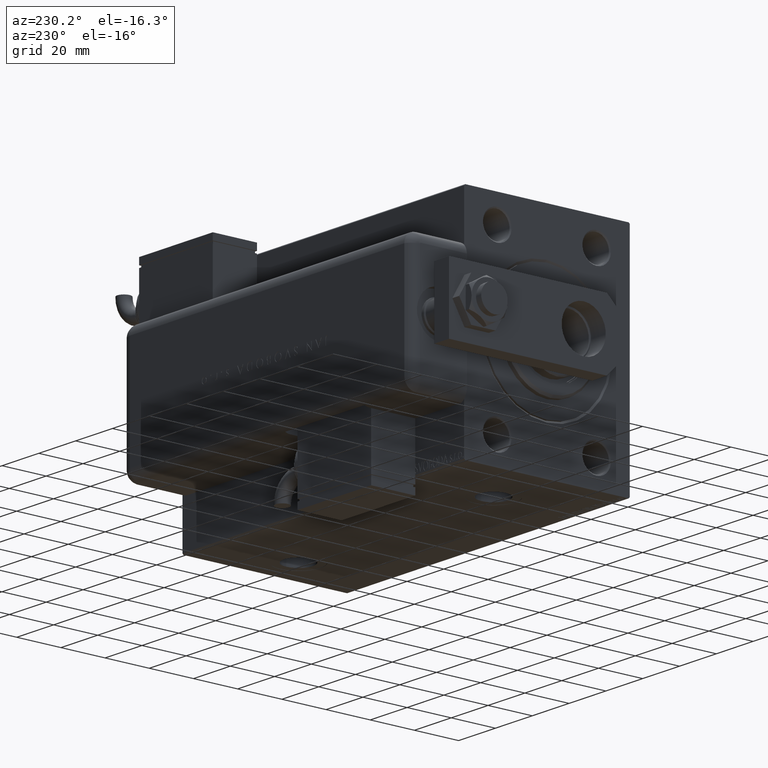
[diagram: clean part render]
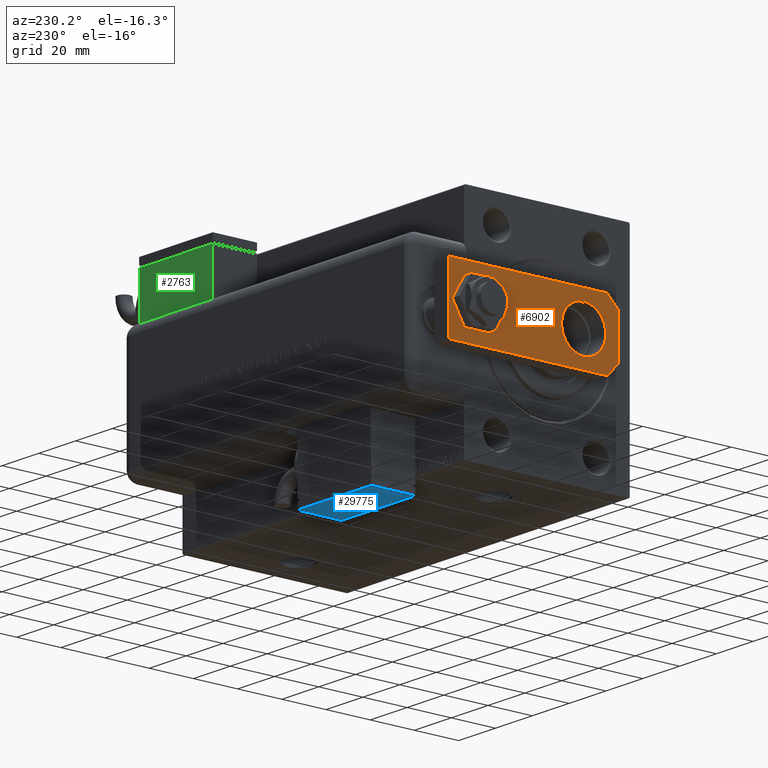
[diagram: same view with three faces highlighted in distinct colors, each labeled with its STEP entity id]
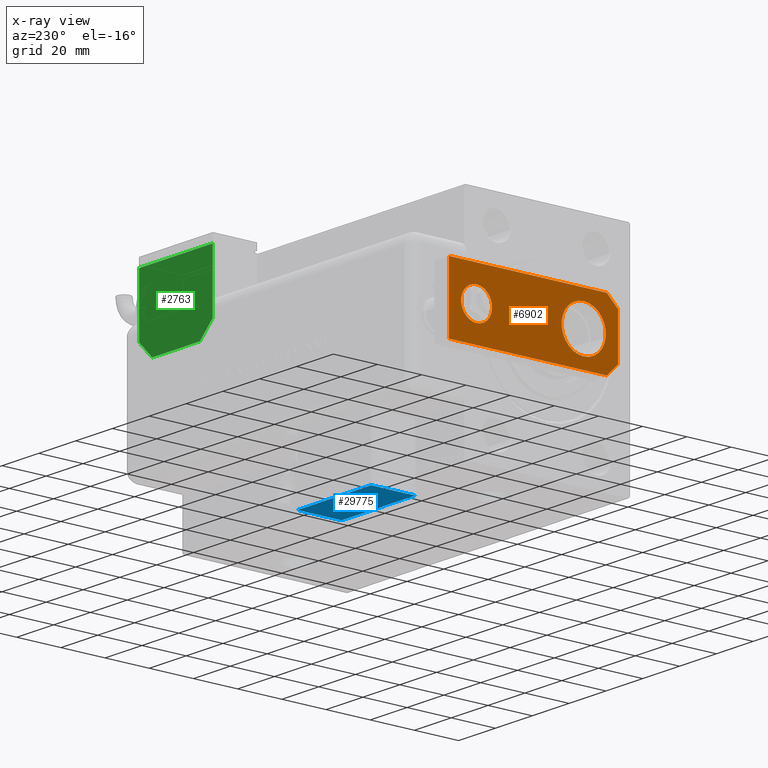
[diagram: x-ray of the same camera — body ghosted, the three highlighted faces saturated]
A machine part, auxiliary view with three faces highlighted in distinct colors.
The next image is the same camera in x-ray (body ghosted, the three faces saturated) — at least one of them is partly hidden behind the body in this view.
Their STEP definitions:

[orange] entity #6902 — the highlighted planar face has unit normal (1, -0, -0).
#388 = CARTESIAN_POINT ( 'NONE',  ( 0.000000000000000000, 15.50000000000000000, 0.000000000000000000 ) ) ;
#1644 = CIRCLE ( 'NONE', #24012, 7.000000000000000000 ) ;
#1754 = VERTEX_POINT ( 'NONE', #54611 ) ;
#2066 = VERTEX_POINT ( 'NONE', #56074 ) ;
#2070 = DIRECTION ( 'NONE',  ( 1.000000000000000000, 0.000000000000000000, 0.000000000000000000 ) ) ;
#3474 = VERTEX_POINT ( 'NONE', #49580 ) ;
#3833 = LINE ( 'NONE', #28200, #25932 ) ;
#3860 = EDGE_LOOP ( 'NONE', ( #14050, #24241 ) ) ;
#4025 = CARTESIAN_POINT ( 'NONE',  ( -10.00000000000001066, 9.629649721936179265E-32, 0.000000000000000000 ) ) ;
#4603 = ORIENTED_EDGE ( 'NONE', *, *, #45210, .F. ) ;
#6902 = ADVANCED_FACE ( 'NONE', ( #17613, #39894, #58439 ), #16726, .F. ) ;
#6972 = DIRECTION ( 'NONE',  ( -0.000000000000000000, 0.000000000000000000, 1.000000000000000000 ) ) ;
#7715 = VERTEX_POINT ( 'NONE', #12824 ) ;
#8246 = VERTEX_POINT ( 'NONE', #41926 ) ;
#8695 = ORIENTED_EDGE ( 'NONE', *, *, #52146, .T. ) ;
#10852 = LINE ( 'NONE', #29734, #31037 ) ;
#11364 = ORIENTED_EDGE ( 'NONE', *, *, #14969, .T. ) ;
#11531 = CARTESIAN_POINT ( 'NONE',  ( 1.963948872468190046E-17, 64.00000000000000000, 0.000000000000000000 ) ) ;
#12448 = DIRECTION ( 'NONE',  ( -1.000000000000000000, 0.000000000000000000, 0.000000000000000000 ) ) ;
#12824 = CARTESIAN_POINT ( 'NONE',  ( 15.00000000000000888, 5.000000000000004441, 0.000000000000000000 ) ) ;
#13129 = DIRECTION ( 'NONE',  ( -6.802837160693361638E-17, 1.000000000000000000, 0.000000000000000000 ) ) ;
#13245 = CARTESIAN_POINT ( 'NONE',  ( -7.000000000000000000, 64.00000000000000000, 0.000000000000000000 ) ) ;
#13835 = EDGE_CURVE ( 'NONE', #7715, #45419, #46014, .T. ) ;
#14050 = ORIENTED_EDGE ( 'NONE', *, *, #59160, .T. ) ;
#14969 = EDGE_CURVE ( 'NONE', #30846, #8246, #56612, .T. ) ;
#15003 = CARTESIAN_POINT ( 'NONE',  ( 0.000000000000000000, 15.50000000000000000, 0.000000000000000000 ) ) ;
#15489 = CARTESIAN_POINT ( 'NONE',  ( -10.00000000000001066, 9.629649721936179265E-32, 0.000000000000000000 ) ) ;
#15656 = CARTESIAN_POINT ( 'NONE',  ( 15.00000000000000355, 76.50000000000000000, 0.000000000000000000 ) ) ;
#16726 = PLANE ( 'NONE',  #49909 ) ;
#17018 = ORIENTED_EDGE ( 'NONE', *, *, #50840, .F. ) ;
#17613 = FACE_OUTER_BOUND ( 'NONE', #39286, .T. ) ;
#18133 = VERTEX_POINT ( 'NONE', #13245 ) ;
#18668 = EDGE_CURVE ( 'NONE', #2066, #3474, #31711, .T. ) ;
#19864 = DIRECTION ( 'NONE',  ( -1.360567432138672328E-16, -1.000000000000000000, 0.000000000000000000 ) ) ;
#20311 = DIRECTION ( 'NONE',  ( 1.000000000000000000, 0.000000000000000000, 0.000000000000000000 ) ) ;
#23158 = EDGE_LOOP ( 'NONE', ( #43411, #30728 ) ) ;
#24012 = AXIS2_PLACEMENT_3D ( 'NONE', #11531, #44418, #2070 ) ;
#24241 = ORIENTED_EDGE ( 'NONE', *, *, #18668, .T. ) ;
#25932 = VECTOR ( 'NONE', #46783, 1000.000000000000114 ) ;
#27712 = VECTOR ( 'NONE', #46575, 1000.000000000000114 ) ;
#27807 = VECTOR ( 'NONE', #13129, 1000.000000000000000 ) ;
#28200 = CARTESIAN_POINT ( 'NONE',  ( 15.00000000000000888, 5.000000000000004441, 0.000000000000000000 ) ) ;
#28399 = CARTESIAN_POINT ( 'NONE',  ( -14.99999999999999822, 76.50000000000000000, 0.000000000000000000 ) ) ;
#28721 = DIRECTION ( 'NONE',  ( 1.000000000000000000, 0.000000000000000000, 0.000000000000000000 ) ) ;
#29734 = CARTESIAN_POINT ( 'NONE',  ( -15.00000000000000888, 9.629649721936179265E-32, 0.000000000000000000 ) ) ;
#29963 = CARTESIAN_POINT ( 'NONE',  ( 1.963948872468190046E-17, 64.00000000000000000, 0.000000000000000000 ) ) ;
#30011 = EDGE_CURVE ( 'NONE', #46915, #8246, #38748, .T. ) ;
#30728 = ORIENTED_EDGE ( 'NONE', *, *, #45541, .T. ) ;
#30846 = VERTEX_POINT ( 'NONE', #4025 ) ;
#31037 = VECTOR ( 'NONE', #20311, 1000.000000000000000 ) ;
#31711 = CIRCLE ( 'NONE', #59917, 10.00000000000000711 ) ;
#32615 = CARTESIAN_POINT ( 'NONE',  ( 15.00000000000000888, 9.629649721936179265E-32, 0.000000000000000000 ) ) ;
#32995 = DIRECTION ( 'NONE',  ( 0.000000000000000000, 0.000000000000000000, 1.000000000000000000 ) ) ;
#33929 = DIRECTION ( 'NONE',  ( 1.000000000000000000, 0.000000000000000000, 0.000000000000000000 ) ) ;
#35294 = DIRECTION ( 'NONE',  ( 1.000000000000000000, 0.000000000000000000, 0.000000000000000000 ) ) ;
#35904 = AXIS2_PLACEMENT_3D ( 'NONE', #29963, #53419, #33929 ) ;
#35966 = CARTESIAN_POINT ( 'NONE',  ( 9.999999999999982236, 9.629649721936179265E-32, 0.000000000000000000 ) ) ;
#36175 = VERTEX_POINT ( 'NONE', #35966 ) ;
#36528 = ORIENTED_EDGE ( 'NONE', *, *, #13835, .F. ) ;
#38748 = LINE ( 'NONE', #28399, #42213 ) ;
#39286 = EDGE_LOOP ( 'NONE', ( #4603, #11364, #43476, #17018, #36528, #8695 ) ) ;
#39814 = AXIS2_PLACEMENT_3D ( 'NONE', #388, #32995, #28721 ) ;
#39894 = FACE_BOUND ( 'NONE', #23158, .T. ) ;
#41926 = CARTESIAN_POINT ( 'NONE',  ( -15.00000000000000888, 5.000000000000018652, 0.000000000000000000 ) ) ;
#42213 = VECTOR ( 'NONE', #19864, 1000.000000000000000 ) ;
#42730 = DIRECTION ( 'NONE',  ( 1.000000000000000000, 0.000000000000000000, 0.000000000000000000 ) ) ;
#43411 = ORIENTED_EDGE ( 'NONE', *, *, #54024, .T. ) ;
#43476 = ORIENTED_EDGE ( 'NONE', *, *, #30011, .F. ) ;
#44418 = DIRECTION ( 'NONE',  ( 0.000000000000000000, 0.000000000000000000, 1.000000000000000000 ) ) ;
#44641 = CIRCLE ( 'NONE', #35904, 7.000000000000000000 ) ;
#45210 = EDGE_CURVE ( 'NONE', #30846, #36175, #10852, .T. ) ;
#45419 = VERTEX_POINT ( 'NONE', #15656 ) ;
#45541 = EDGE_CURVE ( 'NONE', #1754, #18133, #44641, .T. ) ;
#46014 = LINE ( 'NONE', #32615, #27807 ) ;
#46575 = DIRECTION ( 'NONE',  ( -0.7071067811865460184, 0.7071067811865489050, -0.000000000000000000 ) ) ;
#46783 = DIRECTION ( 'NONE',  ( -0.7071067811865489050, -0.7071067811865460184, -0.000000000000000000 ) ) ;
#46915 = VERTEX_POINT ( 'NONE', #50758 ) ;
#48698 = CARTESIAN_POINT ( 'NONE',  ( 15.00000000000000355, 76.50000000000000000, 0.000000000000000000 ) ) ;
#49580 = CARTESIAN_POINT ( 'NONE',  ( -10.00000000000000711, 15.50000000000000000, 0.000000000000000000 ) ) ;
#49909 = AXIS2_PLACEMENT_3D ( 'NONE', #54771, #6972, #35294 ) ;
#50503 = VECTOR ( 'NONE', #12448, 1000.000000000000000 ) ;
#50758 = CARTESIAN_POINT ( 'NONE',  ( -14.99999999999999822, 76.50000000000000000, 0.000000000000000000 ) ) ;
#50840 = EDGE_CURVE ( 'NONE', #45419, #46915, #58726, .T. ) ;
#52146 = EDGE_CURVE ( 'NONE', #7715, #36175, #3833, .T. ) ;
#53419 = DIRECTION ( 'NONE',  ( 0.000000000000000000, 0.000000000000000000, 1.000000000000000000 ) ) ;
#54024 = EDGE_CURVE ( 'NONE', #18133, #1754, #1644, .T. ) ;
#54611 = CARTESIAN_POINT ( 'NONE',  ( 7.000000000000000000, 64.00000000000000000, 0.000000000000000000 ) ) ;
#54771 = CARTESIAN_POINT ( 'NONE',  ( 0.000000000000000000, 0.000000000000000000, 0.000000000000000000 ) ) ;
#56074 = CARTESIAN_POINT ( 'NONE',  ( 10.00000000000000711, 15.50000000000000178, 0.000000000000000000 ) ) ;
#56612 = LINE ( 'NONE', #15489, #27712 ) ;
#57025 = DIRECTION ( 'NONE',  ( 0.000000000000000000, 0.000000000000000000, 1.000000000000000000 ) ) ;
#57307 = CIRCLE ( 'NONE', #39814, 10.00000000000000711 ) ;
#58439 = FACE_BOUND ( 'NONE', #3860, .T. ) ;
#58726 = LINE ( 'NONE', #48698, #50503 ) ;
#59160 = EDGE_CURVE ( 'NONE', #3474, #2066, #57307, .T. ) ;
#59917 = AXIS2_PLACEMENT_3D ( 'NONE', #15003, #57025, #42730 ) ;

[blue] entity #29775 — the highlighted planar face has unit normal (0, 0, 1).
#644 = LINE ( 'NONE', #3478, #28346 ) ;
#922 = CARTESIAN_POINT ( 'NONE',  ( -19.99999999999994316, -17.49999999999996092, 10.00000000000000000 ) ) ;
#3478 = CARTESIAN_POINT ( 'NONE',  ( -19.99999999999994316, -17.49999999999996092, -9.999999999999998224 ) ) ;
#4324 = CARTESIAN_POINT ( 'NONE',  ( 0.000000000000000000, -17.49999999999996092, 0.000000000000000000 ) ) ;
#4489 = VECTOR ( 'NONE', #9771, 1000.000000000000000 ) ;
#5634 = VECTOR ( 'NONE', #56142, 1000.000000000000000 ) ;
#7889 = ORIENTED_EDGE ( 'NONE', *, *, #44261, .T. ) ;
#9771 = DIRECTION ( 'NONE',  ( -1.000000000000000000, -0.000000000000000000, -0.000000000000000000 ) ) ;
#10605 = CARTESIAN_POINT ( 'NONE',  ( -19.99999999999994316, -17.49999999999996092, -9.999999999999998224 ) ) ;
#13440 = EDGE_LOOP ( 'NONE', ( #40782, #27475, #7889, #35742 ) ) ;
#14940 = LINE ( 'NONE', #922, #4489 ) ;
#18223 = CARTESIAN_POINT ( 'NONE',  ( -19.99999999999994316, -17.49999999999996092, -9.999999999999998224 ) ) ;
#19397 = CARTESIAN_POINT ( 'NONE',  ( -19.99999999999994316, -17.49999999999996092, 10.00000000000000000 ) ) ;
#21782 = DIRECTION ( 'NONE',  ( 1.000000000000000000, 0.000000000000000000, 0.000000000000000000 ) ) ;
#23634 = EDGE_CURVE ( 'NONE', #58445, #59822, #644, .T. ) ;
#25827 = LINE ( 'NONE', #10605, #57240 ) ;
#27475 = ORIENTED_EDGE ( 'NONE', *, *, #38736, .T. ) ;
#28346 = VECTOR ( 'NONE', #21782, 1000.000000000000000 ) ;
#28423 = CARTESIAN_POINT ( 'NONE',  ( 20.00000000000005329, -17.49999999999996092, -9.999999999999998224 ) ) ;
#28723 = LINE ( 'NONE', #28423, #5634 ) ;
#29775 = ADVANCED_FACE ( 'NONE', ( #36632 ), #46066, .F. ) ;
#34337 = CARTESIAN_POINT ( 'NONE',  ( 20.00000000000005329, -17.49999999999996092, 10.00000000000000000 ) ) ;
#35742 = ORIENTED_EDGE ( 'NONE', *, *, #23634, .T. ) ;
#36632 = FACE_OUTER_BOUND ( 'NONE', #13440, .T. ) ;
#36934 = DIRECTION ( 'NONE',  ( 0.000000000000000000, -0.000000000000000000, 1.000000000000000000 ) ) ;
#38736 = EDGE_CURVE ( 'NONE', #58583, #40931, #14940, .T. ) ;
#40782 = ORIENTED_EDGE ( 'NONE', *, *, #43847, .T. ) ;
#40931 = VERTEX_POINT ( 'NONE', #19397 ) ;
#41250 = AXIS2_PLACEMENT_3D ( 'NONE', #4324, #60074, #36934 ) ;
#43847 = EDGE_CURVE ( 'NONE', #59822, #58583, #28723, .T. ) ;
#44261 = EDGE_CURVE ( 'NONE', #40931, #58445, #25827, .T. ) ;
#44403 = DIRECTION ( 'NONE',  ( -0.000000000000000000, -0.000000000000000000, -1.000000000000000000 ) ) ;
#46066 = PLANE ( 'NONE',  #41250 ) ;
#47984 = CARTESIAN_POINT ( 'NONE',  ( 20.00000000000005329, -17.49999999999996092, -9.999999999999998224 ) ) ;
#56142 = DIRECTION ( 'NONE',  ( 0.000000000000000000, 0.000000000000000000, 1.000000000000000000 ) ) ;
#57240 = VECTOR ( 'NONE', #44403, 1000.000000000000000 ) ;
#58445 = VERTEX_POINT ( 'NONE', #18223 ) ;
#58583 = VERTEX_POINT ( 'NONE', #34337 ) ;
#59822 = VERTEX_POINT ( 'NONE', #47984 ) ;
#60074 = DIRECTION ( 'NONE',  ( 0.000000000000000000, 1.000000000000000000, 0.000000000000000000 ) ) ;

[green] entity #2763 — the highlighted planar face has unit normal (-0, -1, 0).
#206 = EDGE_CURVE ( 'NONE', #48249, #47298, #42693, .T. ) ;
#1382 = LINE ( 'NONE', #23960, #21935 ) ;
#1887 = VERTEX_POINT ( 'NONE', #18960 ) ;
#2763 = ADVANCED_FACE ( 'NONE', ( #30836 ), #34202, .F. ) ;
#4141 = CARTESIAN_POINT ( 'NONE',  ( -19.99999999999994316, -13.49999999999996092, -10.00000000000000000 ) ) ;
#4445 = DIRECTION ( 'NONE',  ( 1.000000000000000000, 0.000000000000000000, 0.000000000000000000 ) ) ;
#5201 = ORIENTED_EDGE ( 'NONE', *, *, #43692, .F. ) ;
#8212 = VERTEX_POINT ( 'NONE', #34424 ) ;
#8925 = ORIENTED_EDGE ( 'NONE', *, *, #23302, .F. ) ;
#11058 = CARTESIAN_POINT ( 'NONE',  ( 0.000000000000000000, 0.000000000000000000, -10.00000000000000000 ) ) ;
#11309 = CARTESIAN_POINT ( 'NONE',  ( -12.99999999999994138, 20.50000000000009592, -10.00000000000000000 ) ) ;
#11715 = CARTESIAN_POINT ( 'NONE',  ( -19.99999999999994316, -13.49999999999996092, -10.00000000000000000 ) ) ;
#12331 = VECTOR ( 'NONE', #55995, 1000.000000000000000 ) ;
#13767 = VERTEX_POINT ( 'NONE', #53383 ) ;
#14158 = ORIENTED_EDGE ( 'NONE', *, *, #17071, .F. ) ;
#16662 = VECTOR ( 'NONE', #4445, 1000.000000000000000 ) ;
#16829 = DIRECTION ( 'NONE',  ( 0.000000000000000000, 0.000000000000000000, 1.000000000000000000 ) ) ;
#17071 = EDGE_CURVE ( 'NONE', #13767, #1887, #1382, .T. ) ;
#18960 = CARTESIAN_POINT ( 'NONE',  ( -19.99999999999993960, 2.569960705150834076E-15, -9.999999999999996447 ) ) ;
#19112 = CARTESIAN_POINT ( 'NONE',  ( 9.999999999999984013, 23.50000000000009592, -10.00000000000000000 ) ) ;
#21166 = DIRECTION ( 'NONE',  ( -1.284980352575421081E-16, -1.000000000000000000, -0.000000000000000000 ) ) ;
#21454 = VERTEX_POINT ( 'NONE', #44900 ) ;
#21935 = VECTOR ( 'NONE', #28217, 1000.000000000000000 ) ;
#22212 = LINE ( 'NONE', #27084, #12331 ) ;
#23302 = EDGE_CURVE ( 'NONE', #52071, #21454, #55328, .T. ) ;
#23960 = CARTESIAN_POINT ( 'NONE',  ( -19.99999999999994316, -13.49999999999996092, -10.00000000000000000 ) ) ;
#27084 = CARTESIAN_POINT ( 'NONE',  ( 20.00000000000005329, -13.49999999999996092, -10.00000000000000000 ) ) ;
#27454 = EDGE_CURVE ( 'NONE', #48249, #13767, #41489, .T. ) ;
#28217 = DIRECTION ( 'NONE',  ( -1.284980352575421081E-16, -1.000000000000000000, -0.000000000000000000 ) ) ;
#29635 = DIRECTION ( 'NONE',  ( 1.000000000000000000, 0.000000000000000000, -0.000000000000000000 ) ) ;
#30836 = FACE_OUTER_BOUND ( 'NONE', #41519, .T. ) ;
#31282 = CARTESIAN_POINT ( 'NONE',  ( -19.99999999999994316, -13.49999999999996092, -10.00000000000000000 ) ) ;
#34202 = PLANE ( 'NONE',  #59447 ) ;
#34424 = CARTESIAN_POINT ( 'NONE',  ( 20.00000000000005684, 13.50000000000003730, -10.00000000000000000 ) ) ;
#35775 = EDGE_CURVE ( 'NONE', #8212, #47298, #36771, .T. ) ;
#36580 = VECTOR ( 'NONE', #51402, 1000.000000000000114 ) ;
#36771 = LINE ( 'NONE', #19112, #36580 ) ;
#37474 = ORIENTED_EDGE ( 'NONE', *, *, #35775, .F. ) ;
#39391 = CARTESIAN_POINT ( 'NONE',  ( 12.99999999999999112, 20.50000000000009592, -10.00000000000000000 ) ) ;
#39949 = EDGE_CURVE ( 'NONE', #21454, #8212, #22212, .T. ) ;
#41489 = LINE ( 'NONE', #60049, #56726 ) ;
#41519 = EDGE_LOOP ( 'NONE', ( #56718, #51521, #37474, #59222, #8925, #5201, #14158 ) ) ;
#41794 = DIRECTION ( 'NONE',  ( 1.000000000000000000, 0.000000000000000000, 0.000000000000000000 ) ) ;
#42693 = LINE ( 'NONE', #47550, #55638 ) ;
#43692 = EDGE_CURVE ( 'NONE', #1887, #52071, #57706, .T. ) ;
#44900 = CARTESIAN_POINT ( 'NONE',  ( 20.00000000000005329, -13.49999999999996092, -10.00000000000000000 ) ) ;
#47298 = VERTEX_POINT ( 'NONE', #39391 ) ;
#47550 = CARTESIAN_POINT ( 'NONE',  ( 0.000000000000000000, 20.50000000000009592, -10.00000000000000000 ) ) ;
#48249 = VERTEX_POINT ( 'NONE', #11309 ) ;
#50328 = DIRECTION ( 'NONE',  ( -0.7071067811865356934, -0.7071067811865593411, -0.000000000000000000 ) ) ;
#51402 = DIRECTION ( 'NONE',  ( -0.7071067811865479058, 0.7071067811865470176, -0.000000000000000000 ) ) ;
#51521 = ORIENTED_EDGE ( 'NONE', *, *, #206, .T. ) ;
#52071 = VERTEX_POINT ( 'NONE', #31282 ) ;
#53303 = VECTOR ( 'NONE', #21166, 1000.000000000000000 ) ;
#53383 = CARTESIAN_POINT ( 'NONE',  ( -19.99999999999993960, 13.49999999999986500, -10.00000000000000000 ) ) ;
#55328 = LINE ( 'NONE', #4141, #16662 ) ;
#55638 = VECTOR ( 'NONE', #41794, 1000.000000000000000 ) ;
#55995 = DIRECTION ( 'NONE',  ( 1.284980352575412699E-16, 1.000000000000000000, 0.000000000000000000 ) ) ;
#56718 = ORIENTED_EDGE ( 'NONE', *, *, #27454, .F. ) ;
#56726 = VECTOR ( 'NONE', #50328, 1000.000000000000000 ) ;
#57706 = LINE ( 'NONE', #11715, #53303 ) ;
#59222 = ORIENTED_EDGE ( 'NONE', *, *, #39949, .F. ) ;
#59447 = AXIS2_PLACEMENT_3D ( 'NONE', #11058, #16829, #29635 ) ;
#60049 = CARTESIAN_POINT ( 'NONE',  ( -19.99999999999993960, 13.49999999999986500, -10.00000000000000000 ) ) ;